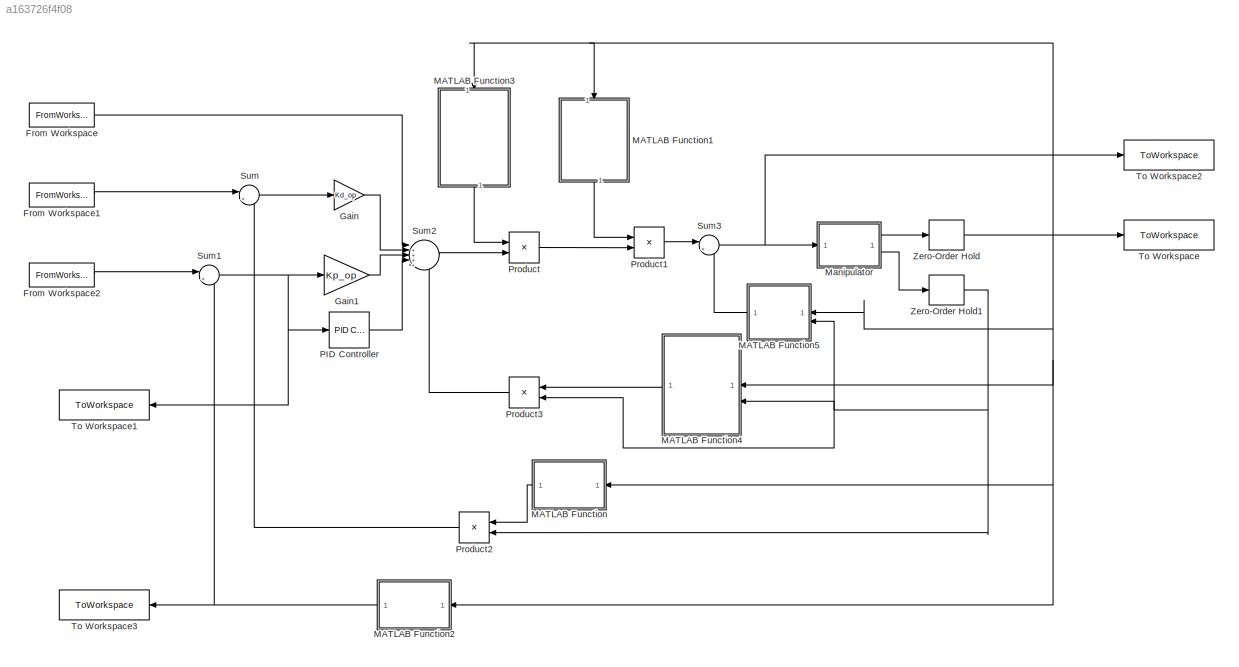
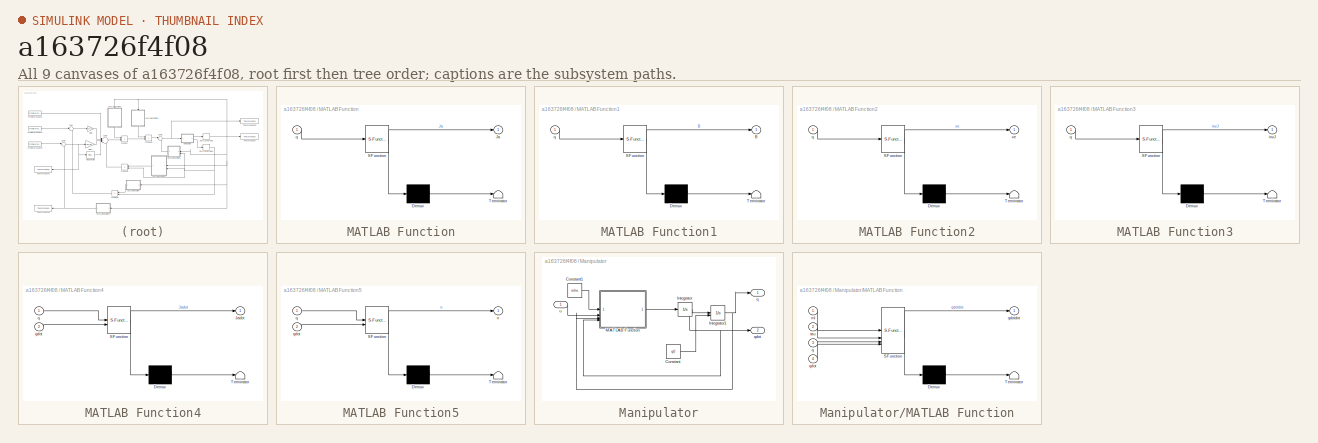
[diagram: thumbnail index - all 9 canvases of the model, root first then tree order]
MODEL slx_a163726f4f08
KIND model
CONFIG AbsTol = auto
CONFIG EnableMultiTasking = off
CONFIG FixedStep = auto
CONFIG MaxStep = auto
CONFIG MinStep = auto
CONFIG RelTol = 1e-3
CONFIG SampleTimeConstraint = Unconstrained
CONFIG SolverName = VariableStepAuto
CONFIG StartTime = 0.0
CONFIG StopTime = 50
BLOCK [FromWorkspace] From Workspace
  SampleTime = Tc
  VariableName = xddotdot
BLOCK [FromWorkspace] From Workspace1
  SampleTime = Tc
  VariableName = xddot
BLOCK [FromWorkspace] From Workspace2
  SampleTime = Tc
  VariableName = xd
BLOCK [Gain] Gain
  Gain = Kd_op
  Multiplication = Matrix(K*u) (u vector)
BLOCK [Gain] Gain1
  Gain = Kp_op
  Multiplication = Matrix(K*u) (u vector)
BLOCK [SubSystem] MATLAB Function
  ErrorFcn = Stateflow.Translate.translate
  NameLocation = top
  PermitHierarchicalResolution = ExplicitOnly
  SFBlockType = MATLAB Function
  TreatAsAtomicUnit = on
BLOCK [Demux] MATLAB Function/ Demux 
  Outputs = 1
BLOCK [S-Function] MATLAB Function/ SFunction 
  EnableBusSupport = on
  FunctionName = sf_sfun
  PortCounts = [1 2]
  SFcnIsStateOwnerBlock = off
  SFunctionDeploymentMode = off
  Tag = Stateflow S-Function 2
BLOCK [Terminator] MATLAB Function/ Terminator 
BLOCK [Outport] MATLAB Function/Ja
BLOCK [Inport] MATLAB Function/q
BLOCK [SubSystem] MATLAB Function1
  ErrorFcn = Stateflow.Translate.translate
  NameLocation = left
  PermitHierarchicalResolution = ExplicitOnly
  SFBlockType = MATLAB Function
  TreatAsAtomicUnit = on
BLOCK [Demux] MATLAB Function1/ Demux 
  Outputs = 1
BLOCK [S-Function] MATLAB Function1/ SFunction 
  EnableBusSupport = on
  FunctionName = sf_sfun
  PortCounts = [1 2]
  SFcnIsStateOwnerBlock = off
  SFunctionDeploymentMode = off
  Tag = Stateflow S-Function 6
BLOCK [Terminator] MATLAB Function1/ Terminator 
BLOCK [Outport] MATLAB Function1/B
BLOCK [Inport] MATLAB Function1/q
BLOCK [SubSystem] MATLAB Function2
  ErrorFcn = Stateflow.Translate.translate
  NameLocation = top
  PermitHierarchicalResolution = ExplicitOnly
  SFBlockType = MATLAB Function
  TreatAsAtomicUnit = on
BLOCK [Demux] MATLAB Function2/ Demux 
  Outputs = 1
BLOCK [S-Function] MATLAB Function2/ SFunction 
  EnableBusSupport = on
  FunctionName = sf_sfun
  PortCounts = [1 2]
  SFcnIsStateOwnerBlock = off
  SFunctionDeploymentMode = off
  Tag = Stateflow S-Function 1
BLOCK [Terminator] MATLAB Function2/ Terminator 
BLOCK [Inport] MATLAB Function2/q
BLOCK [Outport] MATLAB Function2/xe
BLOCK [SubSystem] MATLAB Function3
  ErrorFcn = Stateflow.Translate.translate
  NameLocation = left
  PermitHierarchicalResolution = ExplicitOnly
  SFBlockType = MATLAB Function
  TreatAsAtomicUnit = on
BLOCK [Demux] MATLAB Function3/ Demux 
  Outputs = 1
BLOCK [S-Function] MATLAB Function3/ SFunction 
  EnableBusSupport = on
  FunctionName = sf_sfun
  PortCounts = [1 2]
  SFcnIsStateOwnerBlock = off
  SFunctionDeploymentMode = off
  Tag = Stateflow S-Function 4
BLOCK [Terminator] MATLAB Function3/ Terminator 
BLOCK [Outport] MATLAB Function3/invJ
BLOCK [Inport] MATLAB Function3/q
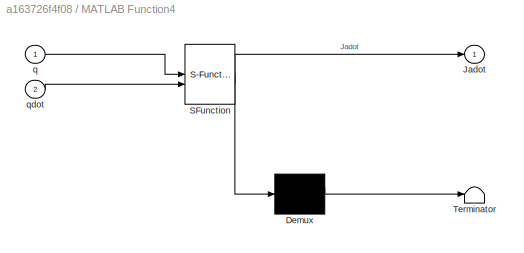
BLOCK [SubSystem] MATLAB Function4
  ErrorFcn = Stateflow.Translate.translate
  NameLocation = top
  PermitHierarchicalResolution = ExplicitOnly
  SFBlockType = MATLAB Function
  TreatAsAtomicUnit = on
BLOCK [Demux] MATLAB Function4/ Demux 
  Outputs = 1
BLOCK [S-Function] MATLAB Function4/ SFunction 
  EnableBusSupport = on
  FunctionName = sf_sfun
  PortCounts = [2 2]
  SFcnIsStateOwnerBlock = off
  SFunctionDeploymentMode = off
  Tag = Stateflow S-Function 3
BLOCK [Terminator] MATLAB Function4/ Terminator 
BLOCK [Outport] MATLAB Function4/Jadot
BLOCK [Inport] MATLAB Function4/q
BLOCK [Inport] MATLAB Function4/qdot
  Port = 2
BLOCK [SubSystem] MATLAB Function5
  ErrorFcn = Stateflow.Translate.translate
  NameLocation = top
  PermitHierarchicalResolution = ExplicitOnly
  SFBlockType = MATLAB Function
  TreatAsAtomicUnit = on
BLOCK [Demux] MATLAB Function5/ Demux 
  Outputs = 1
BLOCK [S-Function] MATLAB Function5/ SFunction 
  EnableBusSupport = on
  FunctionName = sf_sfun
  PortCounts = [2 2]
  SFcnIsStateOwnerBlock = off
  SFunctionDeploymentMode = off
  Tag = Stateflow S-Function 7
BLOCK [Terminator] MATLAB Function5/ Terminator 
BLOCK [Outport] MATLAB Function5/n
BLOCK [Inport] MATLAB Function5/q
BLOCK [Inport] MATLAB Function5/qdot
  Port = 2
BLOCK [SubSystem] Manipulator
BLOCK [Constant] Manipulator/Constant
  Value = q0
BLOCK [Constant] Manipulator/Constant1
  Value = mhe
BLOCK [Integrator] Manipulator/Integrator
  InitialCondition = [0 0 0 0]'
BLOCK [Integrator] Manipulator/Integrator1
  InitialConditionSource = external
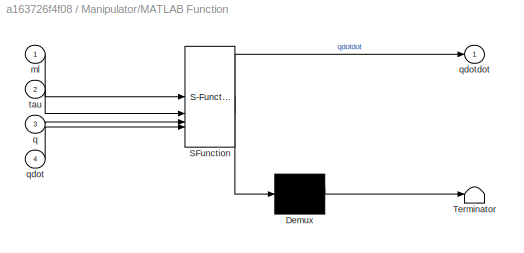
BLOCK [SubSystem] Manipulator/MATLAB Function
  ErrorFcn = Stateflow.Translate.translate
  PermitHierarchicalResolution = ExplicitOnly
  SFBlockType = MATLAB Function
  TreatAsAtomicUnit = on
BLOCK [Demux] Manipulator/MATLAB Function/ Demux 
  Outputs = 1
BLOCK [S-Function] Manipulator/MATLAB Function/ SFunction 
  EnableBusSupport = on
  FunctionName = sf_sfun
  PortCounts = [4 2]
  SFcnIsStateOwnerBlock = off
  SFunctionDeploymentMode = off
  Tag = Stateflow S-Function 8
BLOCK [Terminator] Manipulator/MATLAB Function/ Terminator 
BLOCK [Inport] Manipulator/MATLAB Function/ml
BLOCK [Inport] Manipulator/MATLAB Function/q
  Port = 3
BLOCK [Inport] Manipulator/MATLAB Function/qdot
  Port = 4
BLOCK [Outport] Manipulator/MATLAB Function/qdotdot
BLOCK [Inport] Manipulator/MATLAB Function/tau
  Port = 2
BLOCK [Outport] Manipulator/q
BLOCK [Outport] Manipulator/qdot
  Port = 2
BLOCK [Inport] Manipulator/u
BLOCK [Reference] PID Controller  REF=slpidlib/PID Controller
  LibrarySourceBlock = simulink/Continuous/PID Controller
  SourceBlock = slpidlib/PID Controller
  SourceType = PID 1dof
BLOCK [Product] Product
  Multiplication = Matrix(*)
BLOCK [Product] Product1
  Multiplication = Matrix(*)
BLOCK [Product] Product2
  Multiplication = Matrix(*)
  NameLocation = top
BLOCK [Product] Product3
  Multiplication = Matrix(*)
  NameLocation = top
BLOCK [Sum] Sum
  Inputs = |+-
BLOCK [Sum] Sum1
  Inputs = |+-
BLOCK [Sum] Sum2
  Inputs = |++++-
BLOCK [Sum] Sum3
  Inputs = |++
BLOCK [ToWorkspace] To Workspace
  FixptAsFi = on
  MaxDataPoints = inf
  SampleTime = -1
  SaveFormat = Structure With Time
  VariableName = qcontinvdin
BLOCK [ToWorkspace] To Workspace1
  FixptAsFi = on
  MaxDataPoints = inf
  NameLocation = top
  SampleTime = -1
  SaveFormat = Structure With Time
  VariableName = errorcontinv
BLOCK [ToWorkspace] To Workspace2
  FixptAsFi = on
  MaxDataPoints = inf
  SampleTime = -1
  SaveFormat = Structure With Time
  VariableName = controlinvdin
BLOCK [ToWorkspace] To Workspace3
  FixptAsFi = on
  MaxDataPoints = inf
  NameLocation = top
  SampleTime = -1
  SaveFormat = Structure With Time
  VariableName = xeinvdin
BLOCK [ZeroOrderHold] Zero-Order Hold
  SampleTime = Tc
BLOCK [ZeroOrderHold] Zero-Order Hold1
  SampleTime = Tc
LINE From Workspace1:1 -> Sum:1
LINE From Workspace2:1 -> Sum1:1
LINE From Workspace:1 -> Sum2:1
LINE Gain1:1 -> Sum2:3
LINE Gain:1 -> Sum2:2
LINE MATLAB Function1:1 -> Product1:1
NET MATLAB Function2:1 -> Sum1:2, To Workspace3:1
LINE MATLAB Function3:1 -> Product:1
LINE MATLAB Function4:1 -> Product3:1
LINE MATLAB Function5:1 -> Sum3:2
LINE MATLAB Function:1 -> Product2:1
LINE Manipulator/Constant1:1 -> Manipulator/MATLAB Function:1
LINE Manipulator/Constant:1 -> Manipulator/Integrator1:2
NET Manipulator/Integrator1:1 -> Manipulator/MATLAB Function:3, Manipulator/q:1
NET Manipulator/Integrator:1 -> Manipulator/Integrator1:1, Manipulator/MATLAB Function:4, Manipulator/qdot:1
LINE Manipulator/MATLAB Function:1 -> Manipulator/Integrator:1
LINE Manipulator/u:1 -> Manipulator/MATLAB Function:2
LINE Manipulator:1 -> Zero-Order Hold:1
LINE Manipulator:2 -> Zero-Order Hold1:1
LINE PID Controller:1 -> Sum2:4
LINE Product1:1 -> Sum3:1
LINE Product2:1 -> Sum:2
LINE Product3:1 -> Sum2:5
LINE Product:1 -> Product1:2
NET Sum1:1 -> Gain1:1, PID Controller:1, To Workspace1:1
LINE Sum2:1 -> Product:2
NET Sum3:1 -> Manipulator:1, To Workspace2:1
LINE Sum:1 -> Gain:1
NET Zero-Order Hold1:1 -> MATLAB Function4:2, MATLAB Function5:2, Product2:2, Product3:2
NET Zero-Order Hold:1 -> MATLAB Function1:1, MATLAB Function2:1, MATLAB Function3:1, MATLAB Function4:1, MATLAB Function5:1, MATLAB Function:1, To Workspace:1
note: NET lines group one-source signal fan-out (src -> all destinations, sorted); 1:1 wires keep LINE
CHART MATLAB Function2 states=1 transitions=1
  STATE_LABEL 'eML_blk_kernel()'
  STATE_LABEL 'SCRIPT:\nfunction xe = dirkin(q)\na1=0.5;\na2=a1;\nd0=1;\n\n\nxe=[a1*cos(q(1))+a2*cos(q(1)+q(2));...\n    a1*sin(q(1))+a2*sin(q(1)+q(2));...\n    d0+q(3);...\n    q(1)+q(2)+q(4)];\nend\n'
CHART MATLAB Function states=1 transitions=1
  STATE_LABEL 'eML_blk_kernel()'
  STATE_LABEL 'SCRIPT:\nfunction Ja = Jacobian(q)\na1=0.5;\na2=a1;\nd0=1;\n\nJa= [-a1*sin(q(1))-a2*sin(q(1)+q(2)),-a2*sin(q(1)+q(2)),0,0;...\n    a1*cos(q(1))+a2*cos(q(1)+q(2)),a2*cos(q(1)+q(2)),0,0;...\n    0,0,1,0;...\n    1,1,0,1];\nend\n'
CHART MATLAB Function4 states=1 transitions=1
  STATE_LABEL 'eML_blk_kernel()'
  STATE_LABEL 'SCRIPT:\nfunction Jadot = jacobian_dot(q,qdot)\n\na1=0.5;\na2=a1;\n\nJadot= [qdot(1)*(-a1*cos(q(1)))-(qdot(1)+qdot(2))*a2*cos(q(1)+q(2)),(qdot(1)+qdot(2))*(-a2*cos(q(1)+q(2))),0,0;...\n    qdot(1)*(-a1*sin(q(1)))-(qdot(1)+qdot(2))*a2*sin(q(1)+q(2)),(qdot(1)+qdot(2))*(-a2*sin(q(1)+q(2))),0,0;...\n    0,0,0,0;...\n    0,0,0,0];\n\nend\n'
CHART MATLAB Function3 states=1 transitions=1
  STATE_LABEL 'eML_blk_kernel()'
  STATE_LABEL 'SCRIPT:\nfunction invJ=inversion(q)\n\na1=0.5;\na2=a1;\n\nJ = [-a1*sin(q(1))-a2*sin(q(1)+q(2)),-a2*sin(q(1)+q(2)),0,0;...\n      a1*cos(q(1))+a2*cos(q(1)+q(2)),a2*cos(q(1)+q(2)),0,0;...\n      0,0,1,0;...\n      1,1,0,1];\n\ninvJ=J^-1;\n\nend\n\n\n'
CHART MATLAB Function1 states=1 transitions=1
  STATE_LABEL 'eML_blk_kernel()'
  STATE_LABEL 'SCRIPT:\nfunction B = inertia_matrix(q)\n\na1=0.5;\na2=0.5;\nl1=0.25;\nl2=0.25;\nml1=20;\nml2=20;\nml3=10;\nIl1=4;\nIl2=4;\nIl4=1;\nkr1=1;\nkr2=1;\nkr3=50;\nkr4=20;\nIm1=0.01;\nIm2=0.01;\nIm3=0.005;\nIm4=0.001;\n\nmhe=0; %carico in punta;\n\n%% calcolo jacobiani\nJpl1=[-l1*sin(q(1)) 0 0 0;\n    l1*cos(q(1)) 0 0 0;\n    0 0 0 0];\n\nJpl2=[-a1*sin(q(1))-l2*sin(q(1)+q(2)),-l2*sin(q(1)+q(2)),0,0;\n    a1*cos(q(1))+l2*cos(q(1)+q(2)...<+612ch>'
CHART MATLAB Function5 states=1 transitions=1
  STATE_LABEL 'eML_blk_kernel()'
  STATE_LABEL 'SCRIPT:\nfunction n = compute_n(q,qdot)\n\na1=0.5;\na2=0.5;\nl1=0.25;\nl2=0.25;\nml1=20;\nml2=20;\nml3=10;\nIl1=4;\nIl2=4;\nIl4=1;\nkr1=1;\nkr2=1;\nkr3=50;\nkr4=20;\nIm1=0.01;\nIm2=0.01;\nIm3=0.005;\nIm4=0.001;\nFm1=0.00005;\nFm2=0.00005;\nFm3=0.01;\nFm4=0.005;\n\nmhe=0; %carico in punta;\n\n%% calcolo jacobiani\nJpl1=[-l1*sin(q(1)) 0 0 0;\n       l1*cos(q(1)) 0 0 0;\n       0 0 0 0];\n\nJpl2=[-a1*sin(q(1))-l2*sin(q(1)+q(2)),-l2*...<+1987ch>'
CHART Manipulator/MATLAB Function states=1 transitions=1
  STATE_LABEL 'eML_blk_kernel()'
  STATE_LABEL 'SCRIPT:\nfunction qdotdot= Dinamica_diretta(ml,tau,q,qdot)\na1=0.5;\na2=0.5;\nl1=0.25;\nl2=0.25;\nml1=20;\nml2=20;\nml3=10;\nIl1=4;\nIl2=4;\nIl4=1;\nkr1=1;\nkr2=1;\nkr3=50;\nkr4=20;\nIm1=0.01;\nIm2=0.01;\nIm3=0.005;\nIm4=0.001;\n\nFm1=0.00005;\nFm2=0.00005;\nFm3=0.01;\nFm4=0.005;\n\nmhe=4; %carico in punta;\n%% calcolo jacobiani\nJpl1=[-l1*sin(q(1)) 0 0 0;\n    l1*cos(q(1)) 0 0 0;\n    0 0 0 0];\n\nJpl2=[-a1*sin(q(1))-l2*sin(q(1...<+1865ch>'
CHART  states=0 transitions=0
CHART  states=0 transitions=0
CHART  states=0 transitions=0
CHART  states=0 transitions=0
CHART  states=0 transitions=0
CHART  states=0 transitions=0
CHART  states=0 transitions=0
